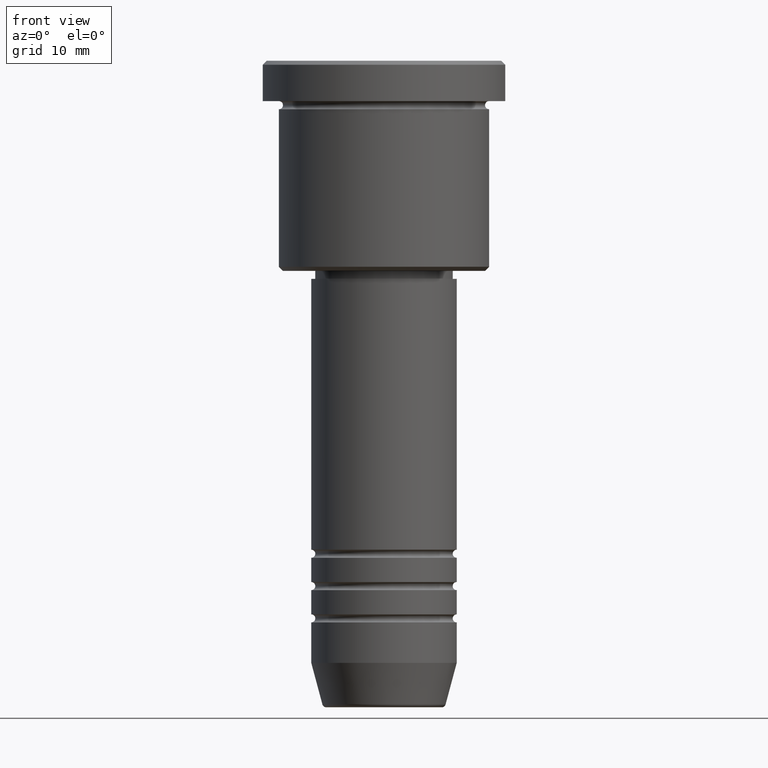
[diagram: clean part render]
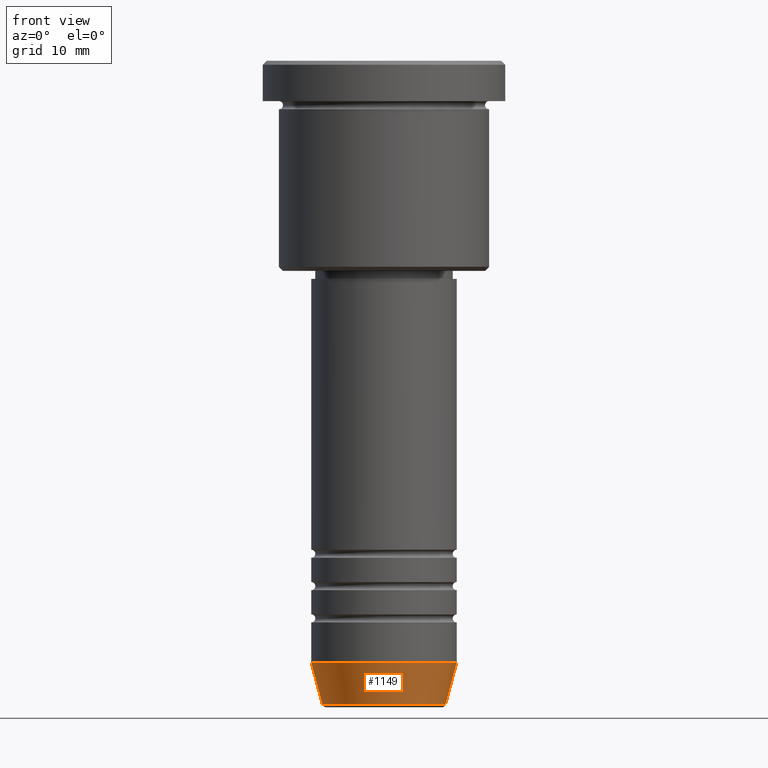
[diagram: same view with one face highlighted and labeled with its STEP entity id]
A machine part, front view. The second image highlights one B-rep face of the part: STEP entity #1149.
In plain terms, the highlighted conical surface has half-angle 15 deg.
Its self-contained STEP definition (entity closure, byte-faithful):
#90 = ORIENTED_EDGE ( 'NONE', *, *, #130, .T. ) ;
#113 = LINE ( 'NONE', #583, #250 ) ;
#122 = ORIENTED_EDGE ( 'NONE', *, *, #988, .T. ) ;
#130 = EDGE_CURVE ( 'NONE', #634, #642, #196, .T. ) ;
#133 = DIRECTION ( 'NONE',  ( 1.000000000000000000, 0.000000000000000000, 0.000000000000000000 ) ) ;
#189 = EDGE_CURVE ( 'NONE', #634, #1119, #1036, .T. ) ;
#196 = CIRCLE ( 'NONE', #768, 7.625578860783878810 ) ;
#204 = EDGE_CURVE ( 'NONE', #1119, #881, #953, .T. ) ;
#217 = DIRECTION ( 'NONE',  ( -0.2588190451025211836, 3.169619151431770488E-17, 0.9659258262890680902 ) ) ;
#233 = CARTESIAN_POINT ( 'NONE',  ( 0.000000000000000000, 0.000000000000000000, -74.50000000000001421 ) ) ;
#250 = VECTOR ( 'NONE', #286, 1000.000000000000114 ) ;
#271 = AXIS2_PLACEMENT_3D ( 'NONE', #439, #886, #133 ) ;
#286 = DIRECTION ( 'NONE',  ( 0.2588190451025211836, 0.000000000000000000, 0.9659258262890680902 ) ) ;
#403 = CARTESIAN_POINT ( 'NONE',  ( 9.000000000000001776, 0.000000000000000000, -74.50000000000001421 ) ) ;
#439 = CARTESIAN_POINT ( 'NONE',  ( 0.000000000000000000, 0.000000000000000000, -74.50000000000001421 ) ) ;
#463 = EDGE_LOOP ( 'NONE', ( #971, #90, #122, #866 ) ) ;
#473 = CARTESIAN_POINT ( 'NONE',  ( -7.625578860783878810, 1.018023096791543899E-15, -79.62940952255127058 ) ) ;
#547 = VECTOR ( 'NONE', #217, 1000.000000000000114 ) ;
#580 = DIRECTION ( 'NONE',  ( 1.000000000000000000, 0.000000000000000000, 0.000000000000000000 ) ) ;
#583 = CARTESIAN_POINT ( 'NONE',  ( 9.000000000000001776, 0.000000000000000000, -74.50000000000001421 ) ) ;
#634 = VERTEX_POINT ( 'NONE', #473 ) ;
#642 = VERTEX_POINT ( 'NONE', #923 ) ;
#668 = DIRECTION ( 'NONE',  ( -0.000000000000000000, -0.000000000000000000, 1.000000000000000000 ) ) ;
#768 = AXIS2_PLACEMENT_3D ( 'NONE', #1018, #668, #580 ) ;
#795 = AXIS2_PLACEMENT_3D ( 'NONE', #233, #958, #965 ) ;
#852 = CARTESIAN_POINT ( 'NONE',  ( -9.000000000000001776, 1.102182119232617911E-15, -74.50000000000001421 ) ) ;
#866 = ORIENTED_EDGE ( 'NONE', *, *, #204, .F. ) ;
#881 = VERTEX_POINT ( 'NONE', #403 ) ;
#886 = DIRECTION ( 'NONE',  ( -0.000000000000000000, -0.000000000000000000, 1.000000000000000000 ) ) ;
#922 = CONICAL_SURFACE ( 'NONE', #795, 9.000000000000001776, 0.2617993877991499074 ) ;
#923 = CARTESIAN_POINT ( 'NONE',  ( 7.625578860783878810, 0.000000000000000000, -79.62940952255127058 ) ) ;
#938 = CARTESIAN_POINT ( 'NONE',  ( -9.000000000000001776, 1.102182119232617911E-15, -74.50000000000001421 ) ) ;
#953 = CIRCLE ( 'NONE', #271, 9.000000000000001776 ) ;
#958 = DIRECTION ( 'NONE',  ( -0.000000000000000000, -0.000000000000000000, 1.000000000000000000 ) ) ;
#965 = DIRECTION ( 'NONE',  ( 1.000000000000000000, 0.000000000000000000, 0.000000000000000000 ) ) ;
#971 = ORIENTED_EDGE ( 'NONE', *, *, #189, .F. ) ;
#974 = FACE_OUTER_BOUND ( 'NONE', #463, .T. ) ;
#988 = EDGE_CURVE ( 'NONE', #642, #881, #113, .T. ) ;
#1018 = CARTESIAN_POINT ( 'NONE',  ( 0.000000000000000000, 0.000000000000000000, -79.62940952255127058 ) ) ;
#1036 = LINE ( 'NONE', #852, #547 ) ;
#1119 = VERTEX_POINT ( 'NONE', #938 ) ;
#1149 = ADVANCED_FACE ( 'NONE', ( #974 ), #922, .T. ) ;